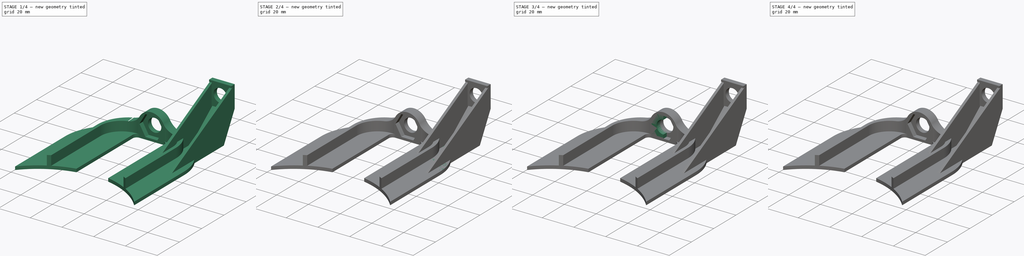
[diagram: build sequence overview — one tinted view per stage of 4, left to right]
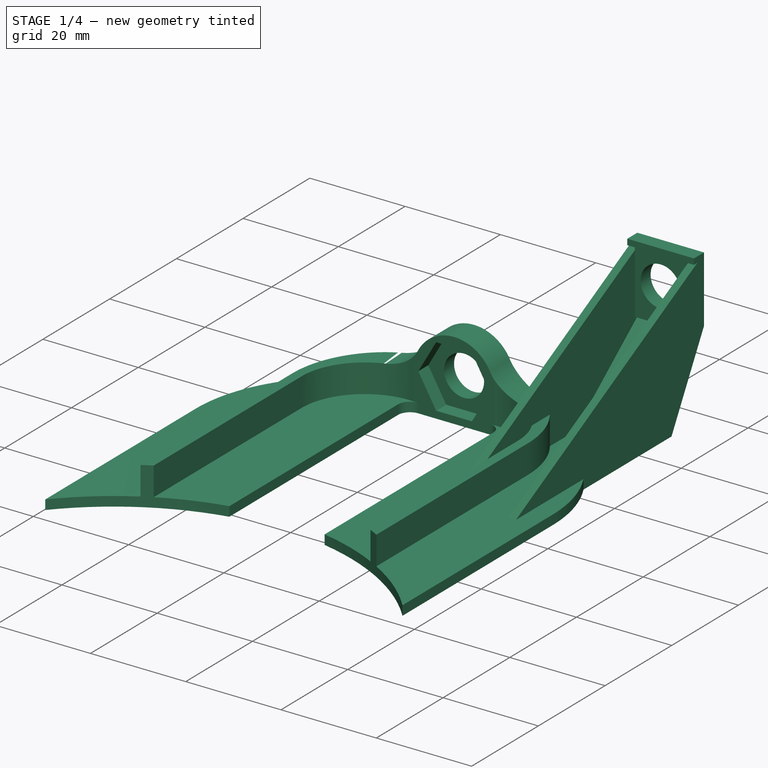
[diagram: stage 1 of 4 — iso view after this stage's code; geometry added in this stage tinted green]
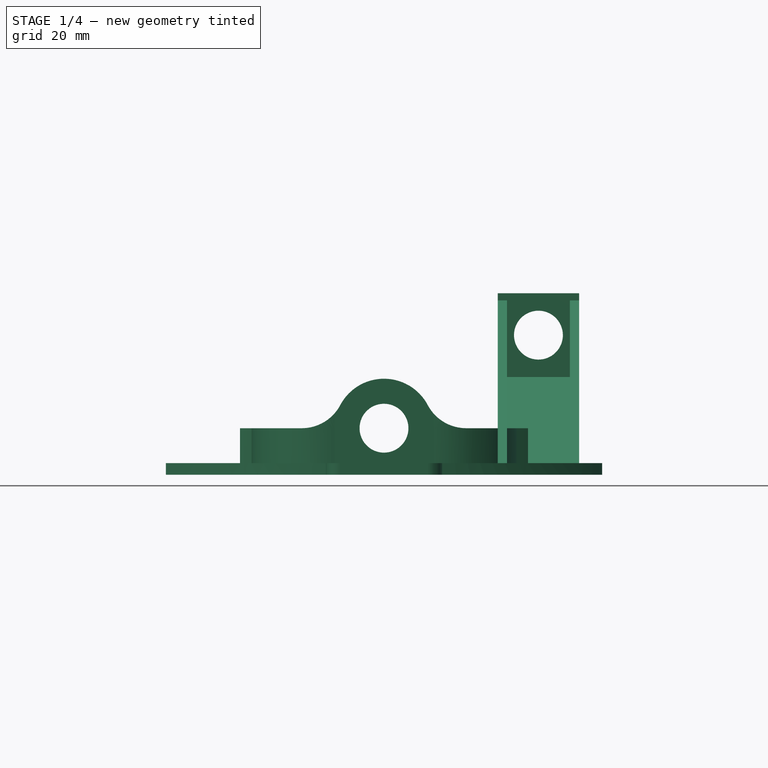
[diagram: stage 1 of 4 — front view after this stage's code; geometry added in this stage tinted green]
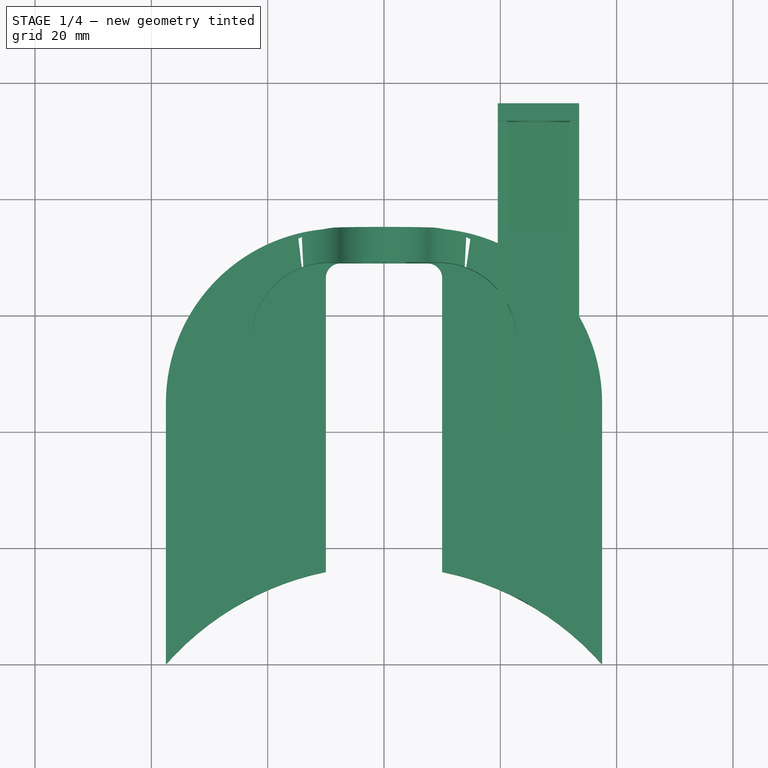
[diagram: stage 1 of 4 — top view after this stage's code; geometry added in this stage tinted green]
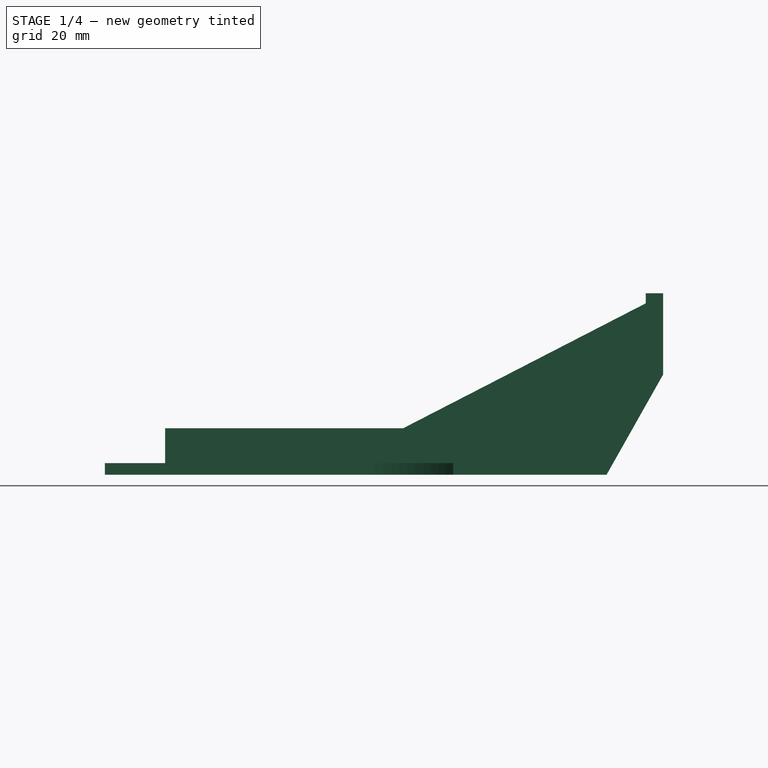
[diagram: stage 1 of 4 — right view after this stage's code; geometry added in this stage tinted green]
FCSTD DOCUMENT  (FreeCAD 0.18.4R)
Label: 7
License: All rights reserved
LicenseURL: http://en.wikipedia.org/wiki/All_rights_reserved
objects: Sketcher::SketchObject×15, PartDesign::Pad×7, PartDesign::Pocket×4, PartDesign::Mirrored×4, PartDesign::Line×1, PartDesign::Plane×1, PartDesign::SubtractivePipe×1, PartDesign::Body×1
note: 46 computed .brp shape members not serialized (recipe doc carries the construction recipe); baked Part::Feature solids carry a one-line shape summary decoded from their .brp

FEATURE [PartDesign::Pad] Pad004  label="Unnamed"
  Length = 100
  Length2 = 100
  Type = 0
FEATURE [PartDesign::Mirrored] Mirrored001  label="Unnamed"
FEATURE [PartDesign::Pad] Pad005  label="Unnamed"
  Length = 100
  Length2 = 100
  Type = 0
FEATURE [Sketcher::SketchObject] Sketch009  label="Unnamed"
FEATURE [PartDesign::Pad] Pad006  label="Unnamed"
  Length = 100
  Length2 = 100
  Type = 0
FEATURE [Sketcher::SketchObject] Sketch008  label="Sketch011"
  ExternalGeometry = -> [Pocket001]
  MapMode = 5
  Placement = pos=(0,0,8) rot=(0,0,1;0rad)
  Support = -> [Pad006]
  constraints (11):
    c: Coincident(g1,g0)
    c: Equal(g0,g1)
    c: Coincident(g3,g2)
    c: Horizontal(g3)
    c: Coincident(g4,g3)
    c: Coincident(g4,g0)
    c: Coincident(g5,g4)
    c: Coincident(g5,g2)
    c: Vertical(g5)
    c: Coincident(g2,g-5)
    c: Coincident(g2,g-5)
FEATURE [Sketcher::SketchObject] Sketch010  label="Unnamed"
FEATURE [Sketcher::SketchObject] Sketch011  label="Unnamed"
FEATURE [PartDesign::Pocket] Pocket002
  BaseFeature = -> Pad006
  Length = 13
  Length2 = 100
  Profile = -> Sketch011
  Reversed = true
  Type = 0
FEATURE [PartDesign::Mirrored] Mirrored002
  BaseFeature = -> Pocket002
  MirrorPlane = -> Sketch009 [V_Axis]
  Originals = -> [Pad006,Pocket002]
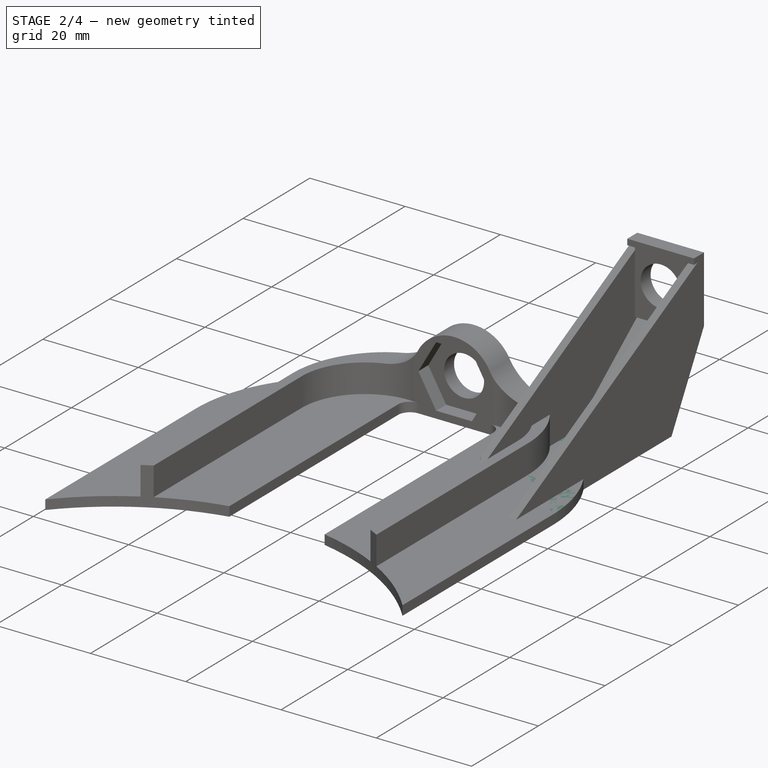
[diagram: stage 2 of 4 — iso view after this stage's code; geometry added in this stage tinted green]
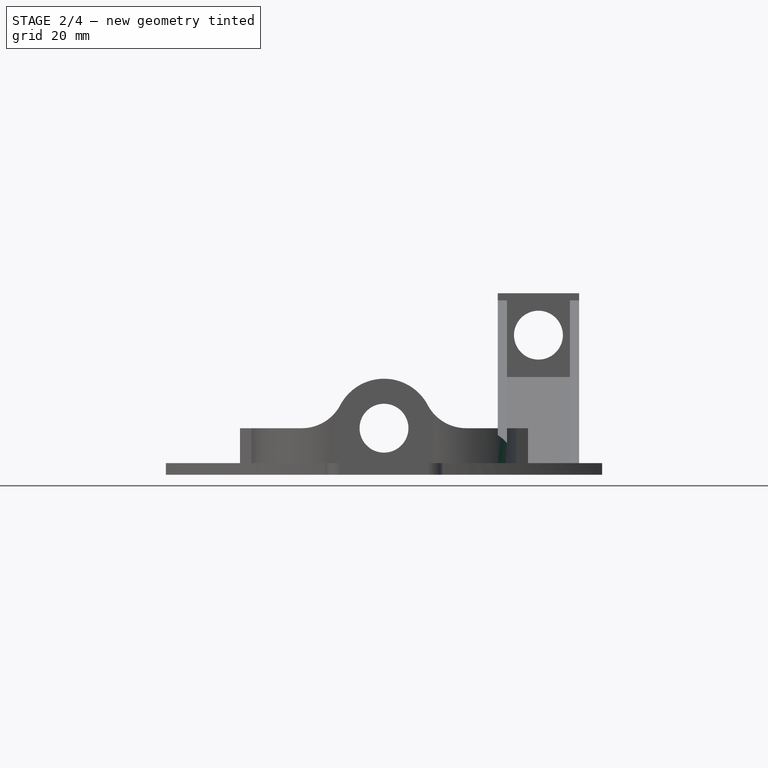
[diagram: stage 2 of 4 — front view after this stage's code; geometry added in this stage tinted green]
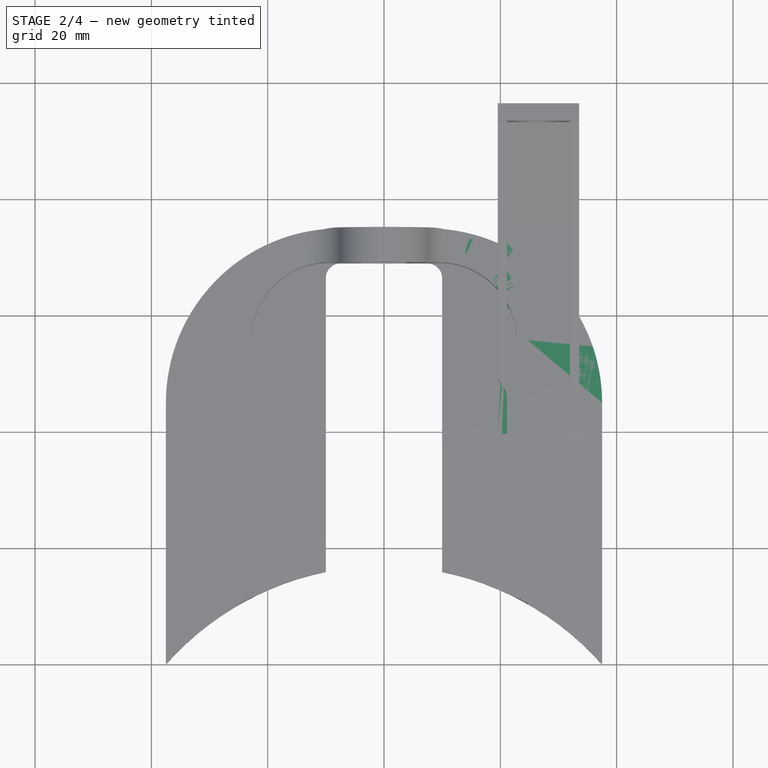
[diagram: stage 2 of 4 — top view after this stage's code; geometry added in this stage tinted green]
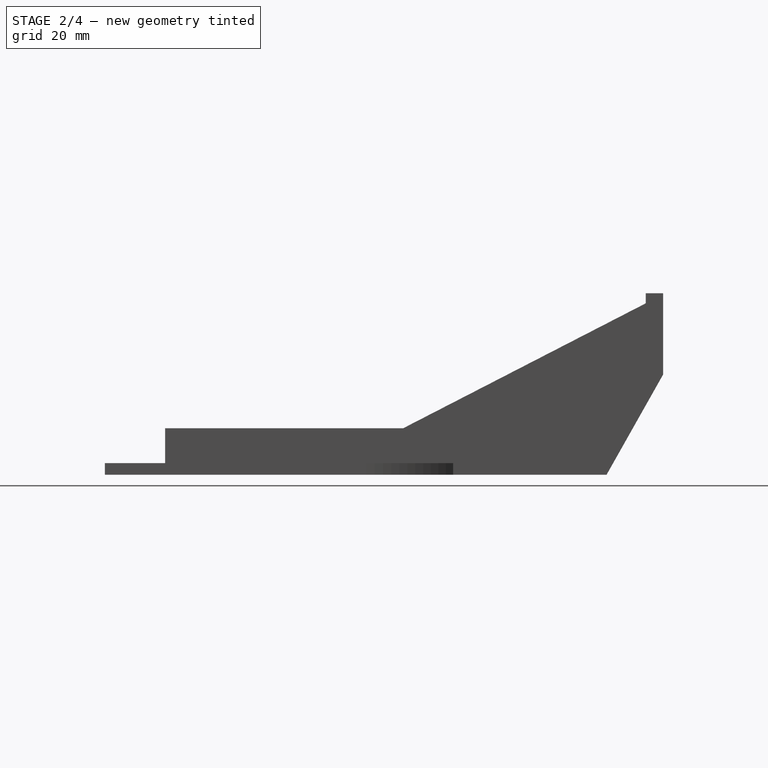
[diagram: stage 2 of 4 — right view after this stage's code; geometry added in this stage tinted green]
FEATURE [Sketcher::SketchObject] Sketch005
  ExternalGeometry = -> [Mirrored]
  MapMode = 5
  Placement = pos=(0,75,0) rot=(0,0.707107,0.707107;3.14159rad)
  Support = -> [Mirrored]
  constraints (9):
    c: Diameter(g0) = 8.4
    c: Vertical(g1)
    c: PointOnObject(g2,g0)
    c: Vertical(g2)
    c: PointOnObject(g1,g0)
    c: Coincident(g1,g0)
    c: Coincident(g2,g1)
    c: Distance(g-3,g1) = 31
    c: DistanceY(g-3,g1) = 16
FEATURE [PartDesign::Line] DatumLine
  AttacherType = Attacher::AttachEngineLine
  MapMode = 29
  Placement = pos=(26.5518,75,0) rot=(0,1,0;3.14159rad)
  Support = -> [Sketch005]
FEATURE [PartDesign::Plane] DatumPlane
  Length = 96.3965
  MapMode = 4
  Placement = pos=(26.5518,75,0) rot=(0.57735,0.57735,-0.57735;4.18879rad)
  ResizeMode = 0
  Support = -> [DatumLine]
  Width = 49.5965
FEATURE [PartDesign::Pad] Pad003  label="Unnamed"
  Length = 100
  Length2 = 100
  Type = 0
FEATURE [Sketcher::SketchObject] Sketch006  label="Sketch007"
  ExternalGeometry = -> [Sketch005]
  MapMode = 5
  Placement = pos=(0,96,0) rot=(0,0.707107,0.707107;3.14159rad)
  Support = -> [Pad003]
  expr: Constraints[27] = Pad.Length
  constraints (30):
    c: Vertical(g0)
    c: Horizontal(g0,g-3)
    c: Horizontal(g0,g-4)
    c: Distance(g-4,g0) = 20
    c: PointOnObject(g1,g-1)
    c: Vertical(g1)
    c: Coincident(g1,g2)
    c: PointOnObject(g2,g-1)
    c: Coincident(g2,g3)
    c: Coincident(g3,g4)
    c: Vertical(g4)
    c: Coincident(g4,g5)
    c: Horizontal(g5)
    c: Coincident(g5,g6)
    c: Vertical(g6)
    c: Coincident(g6,g7)
    c: PointOnObject(g7,g-2)
    c: Coincident(g7,g8)
    c: Coincident(g8,g1)
    c: Coincident(g9,g5)
    c: Coincident(g9,g0)
    c: Coincident(g10,g4)
    c: Coincident(g10,g0)
    c: Equal(g10,g9)
    c: Distance(g5) = 2
    c: DistanceY(g0,g6) = 3
    c: Horizontal(g8)
    c: Distance(g1) = 2
    c: Distance(g-4,g-1) = 24
    c: DistanceY(g4,g0) = 3
FEATURE [Sketcher::SketchObject] Sketch007  label="Unnamed"
FEATURE [PartDesign::Pocket] Pocket001
  BaseFeature = -> Pad003
  Length = 5
  Length2 = 100
  Profile = -> Sketch007
  Type = 0
FEATURE [Sketcher::SketchObject] Sketch012  label="Sketch013"
  ExternalGeometry = -> [Mirrored002]
  MapMode = 5
  Placement = pos=(0,0,8) rot=(0,0,1;0rad)
  Support = -> [Mirrored002]
  constraints (7):
    c: Coincident(g0,g-3)
    c: Coincident(g0,g-3)
    c: Coincident(g1,g0)
    c: Horizontal(g1)
    c: Coincident(g2,g0)
    c: Coincident(g2,g1)
    c: Angle(g2,g0) = 0.785398
FEATURE [Sketcher::SketchObject] Sketch013  label="Unnamed"
FEATURE [PartDesign::Pocket] Pocket003
  BaseFeature = -> Mirrored002
  Length = 6
  Length2 = 100
  Profile = -> Sketch013
  Type = 4
FEATURE [Sketcher::SketchObject] Sketch014  label="Unnamed"
  ExternalGeometry = -> [Pocket003]
  constraints (3):
    c: Coincident(g0,g-3)
    c: Coincident(g0,g-3)
    c: Tangent(g0,g-3)
FEATURE [PartDesign::SubtractivePipe] SubtractivePipe  label="Unnamed"
  AuxilleryCurvelinear = true
  AuxillerySpineTangent = false
  Binormal = (0,0,0)
  Mode = 0
  SpineTangent = false
  Transformation = 0
  Transition = 0
FEATURE [PartDesign::Mirrored] Mirrored003  label="Unnamed"
FEATURE [PartDesign::Body] Body
  Group = -> [Sketch,Pad,Sketch001,Sketch002,Sketch003,Pad001,Sketch004,Pad002,Pocket,Mirrored,Sketch005,DatumLine,DatumPlane,Sketch006,Pad003,Sketch007,Pocket001,Sketch008,Pad004,Mirrored001,Pad005,Sketch009,Pad006,Sketch010,Sketch011,Pocket002,Mirrored002,Sketch012,Sketch013,Pocket003,Sketch014,SubtractivePipe,Mirrored003]
  Origin = -> Origin
  Tip = -> Mirrored003
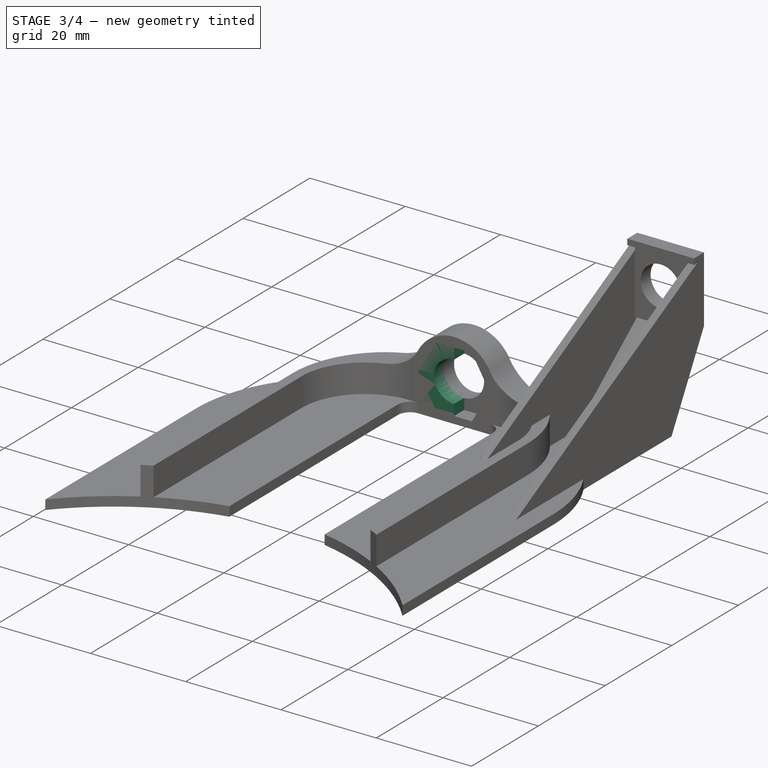
[diagram: stage 3 of 4 — iso view after this stage's code; geometry added in this stage tinted green]
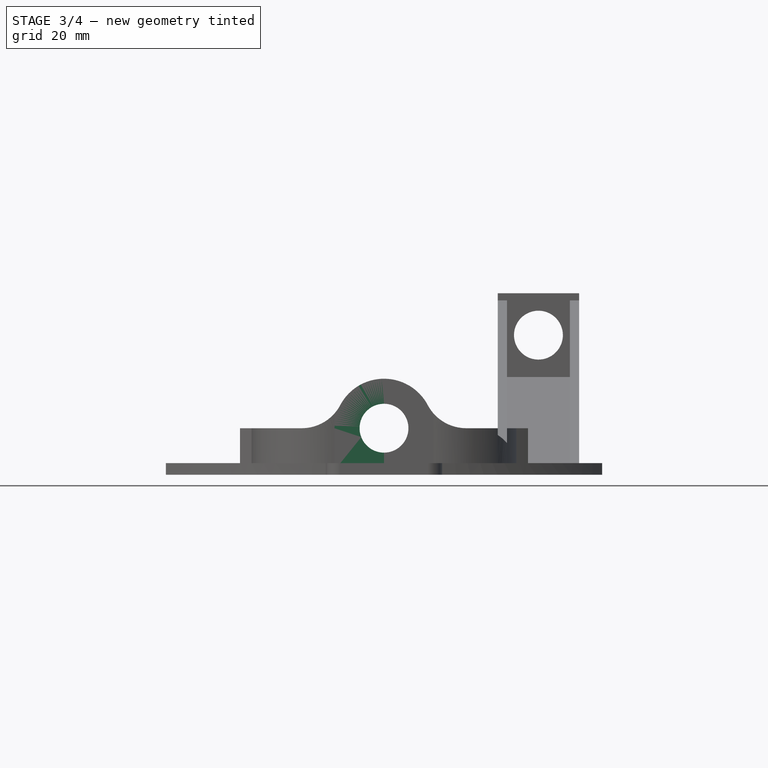
[diagram: stage 3 of 4 — front view after this stage's code; geometry added in this stage tinted green]
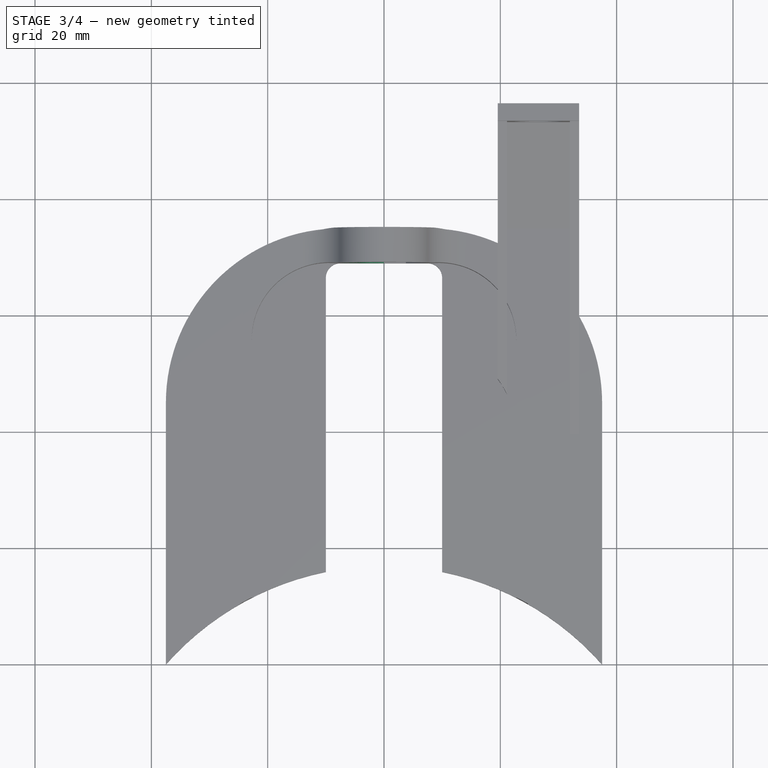
[diagram: stage 3 of 4 — top view after this stage's code; geometry added in this stage tinted green]
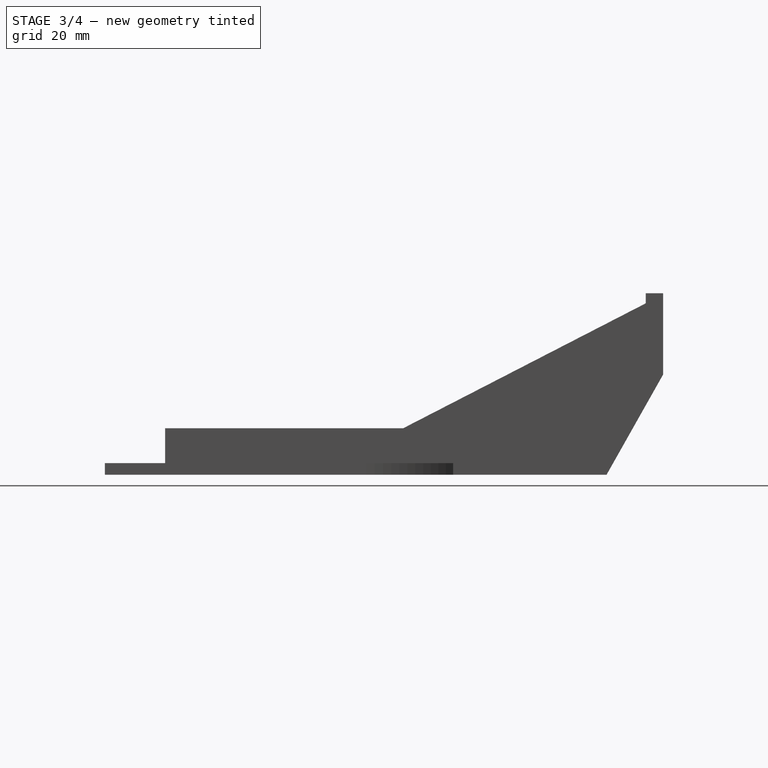
[diagram: stage 3 of 4 — right view after this stage's code; geometry added in this stage tinted green]
FEATURE [Sketcher::SketchObject] Sketch
  MapMode = 5
  Support = -> [XY_Plane]
  constraints (30):
    c: PointOnObject(g0,g-1)
    c: PointOnObject(g0,g-1)
    c: Coincident(g0,g1)
    c: Vertical(g1)
    c: Coincident(g0,g2)
    c: Vertical(g2)
    c: PointOnObject(g3,g-2)
    c: Coincident(g3,g4)
    c: PointOnObject(g4,g-2)
    c: Coincident(g5,g2)
    c: Coincident(g6,g5)
    c: Coincident(g6,g4)
    c: Horizontal(g6)
    c: Horizontal(g3)
    c: Tangent(g5,g6)
    c: Tangent(g5,g2)
    c: Distance(g3,g-1) = 69
    c: Distance(g4) = 6
    c: Distance(g0,g-1) = 10
    c: PointOnObject(g7,g1)
    c: Tangent(g7,g8) = 1.5708
    c: Tangent(g3,g8) = 1.5708
    c: Vertical(g7)
    c: Vertical(g5,g8)
    c: Distance(g-1,g2) = 37.5
    c: PointOnObject(g9,g-2)
    c: Coincident(g9,g2)
    c: Coincident(g9,g7)
    c: Diameter(g9) = 100
    c: Diameter(g8) = 5
FEATURE [PartDesign::Pad] Pad
  Length = 2
  Length2 = 100
  Profile = -> Sketch
  Type = 0
FEATURE [Sketcher::SketchObject] Sketch001
  ExternalGeometry = -> [Pad]
  MapMode = 5
  Placement = pos=(0,75,0) rot=(0,0.707107,0.707107;3.14159rad)
  Support = -> [Pad]
  constraints (34):
    c: PointOnObject(g0,g-2)
    c: PointOnObject(g0,g-2)
    c: PointOnObject(g0,g-2)
    c: Coincident(g1,g0)
    c: PointOnObject(g1,g-2)
    c: Diameter(g0) = 8.4
    c: Coincident(g2,g0)
    c: Coincident(g3,g0)
    c: Coincident(g3,g1)
    c: Vertical(g4)
    c: Coincident(g5,g6)
    c: Coincident(g6,g7)
    c: Coincident(g7,g8)
    c: Coincident(g8,g9)
    c: Coincident(g9,g10)
    c: Coincident(g10,g5)
    c: Equal(g5, g6-g10) x5
    c: PointOnObject(g5,g11)
    c: PointOnObject(g6,g11)
    c: PointOnObject(g7,g11)
    c: PointOnObject(g8,g11)
    c: PointOnObject(g9,g11)
    c: PointOnObject(g10,g11)
    c: Coincident(g11,g0)
    c: Horizontal(g6)
    c: Distance(g9,g5) = 13
    c: Distance(g2,g0) = 6
    c: Horizontal(g12)
    c: Distance(g5,g4) = 1
    c: Coincident(g2,g-3)
    c: Coincident(g12,g2)
    c: Coincident(g12,g4)
    c: Coincident(g1,g4)
    c: Tangent(g1,g4)
FEATURE [Sketcher::SketchObject] Sketch003
  MapMode = 5
  Placement = pos=(0,0,2) rot=(0,0,1;0rad)
FEATURE [PartDesign::Pad] Pad001
  BaseFeature = -> Pad
  Length = 6
  Length2 = 100
  Profile = -> Sketch001
  Reversed = true
  Type = 0
FEATURE [Sketcher::SketchObject] Sketch004
  ExternalGeometry = -> [Pad001]
  MapMode = 5
  Placement = pos=(0,0,2) rot=(0,0,1;0rad)
  constraints (53):
    c: Coincident(g1,g0)
    c: Equal(g0,g1)
    c: Parallel(g1,g0)
    c: Coincident(g2,g0)
    c: Vertical(g2)
    c: Coincident(g4,g3)
    c: Equal(g4,g3)
    c: InternalAlignment(g6-g9 -> g5) x4
    c: InternalAlignment(g11-g14 -> g10) x4
    c: Coincident(g15,g3)
    c: PointOnObject(g15,g3)
    c: Coincident(g16,g15)
    c: PointOnObject(g16,g4)
    c: Equal(g16,g15)
    c: Distance(g16,g15) = 6
    c: Coincident(g17,g0)
    c: Horizontal(g17)
    c: Coincident(g18,g17)
    c: Horizontal(g18)
    c: Distance(g18,g17) = 2
    c: Equal(g18,g17)
    c: Coincident(g5,g17)
    c: Coincident(g5,g15)
    c: Coincident(g10,g18)
    c: Coincident(g10,g16)
    c: PointOnObject(g19,g10)
    c: PointOnObject(g19,g16)
    c: Perpendicular(g10,g16,g19) = 1.5708
    c: PointOnObject(g20,g5)
    c: PointOnObject(g20,g15)
    c: Perpendicular(g5,g15,g20) = 4.71239
    c: PointOnObject(g21,g10)
    c: PointOnObject(g21,g18)
    c: Perpendicular(g10,g18,g21) = 1.5708
    c: PointOnObject(g22,g5)
    c: PointOnObject(g22,g17)
    c: Perpendicular(g5,g17,g22) = 4.71239
    c: Coincident(g23,g5)
    c: Vertical(g23)
    c: Coincident(g24,g10)
    c: Vertical(g24)
    c: Vertical(g11)
    c: Vertical(g6)
    c: Coincident(g25,g23)
    c: Coincident(g25,g24)
    c: PointOnObject(g2,g25)
    c: PointOnObject(g23,g-3)
    c: PointOnObject(g2,g-3)
    c: PointOnObject(g24,g-3)
    c: Coincident(g0,g-4)
    c: Coincident(g1,g-5)
    c: Coincident(g4,g-6)
    c: Coincident(g5,g-6)
FEATURE [PartDesign::Pad] Pad002
  BaseFeature = -> Pad001
  Length = 6
  Length2 = 100
  Profile = -> Sketch004
  Type = 0
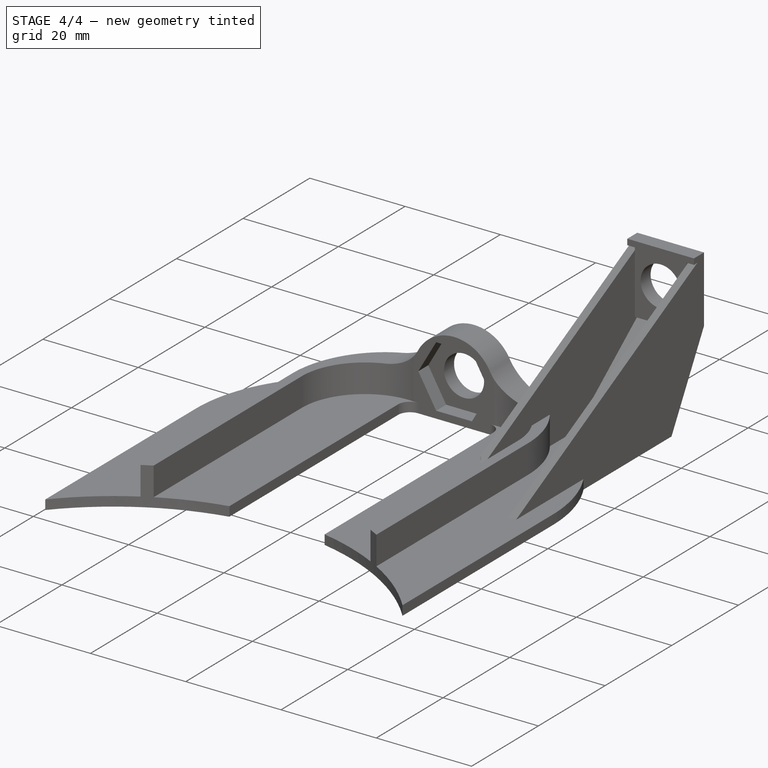
[diagram: stage 4 of 4 — iso view after this stage's code; geometry added in this stage tinted green]
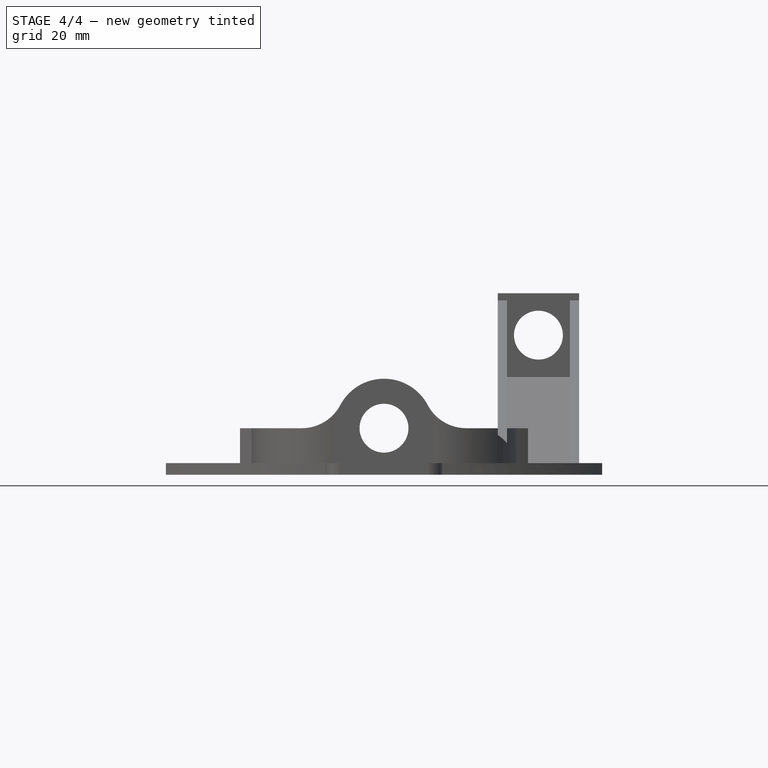
[diagram: stage 4 of 4 — front view after this stage's code; geometry added in this stage tinted green]
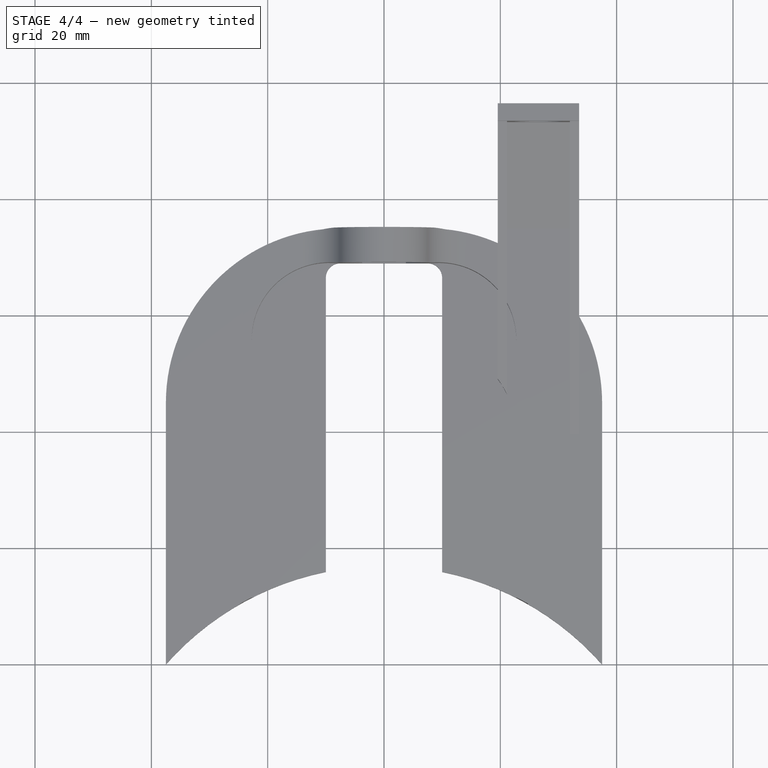
[diagram: stage 4 of 4 — top view after this stage's code; geometry added in this stage tinted green]
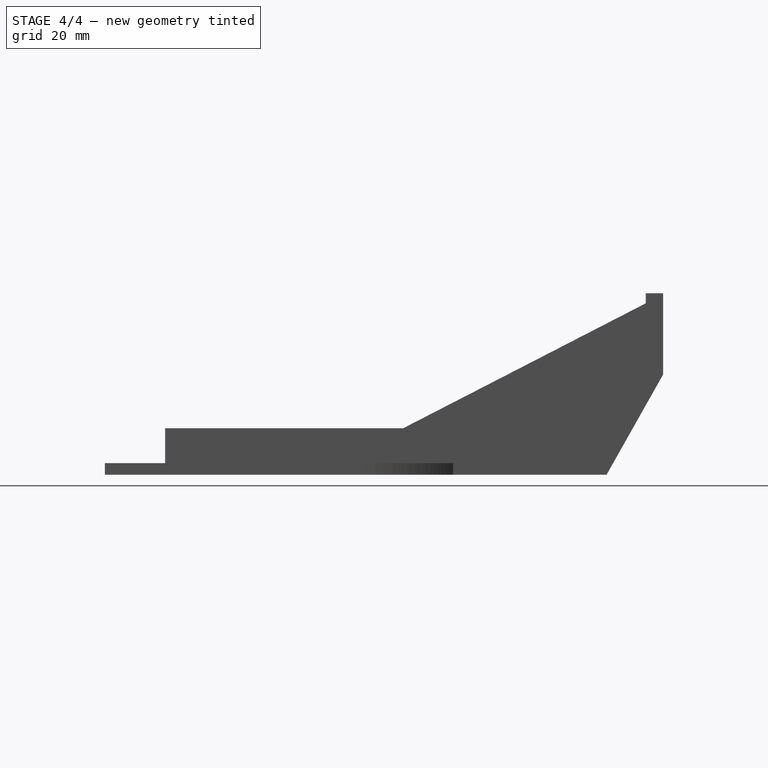
[diagram: stage 4 of 4 — right view after this stage's code; geometry added in this stage tinted green]
FEATURE [Sketcher::SketchObject] Sketch002
  ExternalGeometry = -> [Pad002]
  MapMode = 5
  Placement = pos=(0,69,0) rot=(1,0,0;1.5708rad)
  Support = -> [Pad002]
  constraints (23):
    c: Coincident(g0,g1)
    c: Coincident(g1,g2)
    c: Coincident(g2,g3)
    c: Coincident(g3,g4)
    c: Coincident(g4,g5)
    c: Coincident(g5,g0)
    c: Equal(g0, g1-g5) x5
    c: PointOnObject(g0,g6)
    c: PointOnObject(g1,g6)
    c: PointOnObject(g2,g6)
    c: PointOnObject(g3,g6)
    c: PointOnObject(g4,g6)
    c: PointOnObject(g5,g6)
    c: Distance(g4,g0) = 13
    c: Coincident(g8,g0)
    c: Coincident(g8,g7)
    c: Horizontal(g8)
    c: Coincident(g9,g5)
    c: Coincident(g9,g7)
    c: Horizontal(g9)
    c: Horizontal(g4)
    c: Vertical(g7)
    c: PointOnObject(g7,g-2)
FEATURE [PartDesign::Pocket] Pocket
  BaseFeature = -> Pad002
  Length = 3
  Length2 = 100
  Profile = -> Sketch002
  Type = 0
FEATURE [PartDesign::Mirrored] Mirrored
  BaseFeature = -> Pocket
  MirrorPlane = -> Sketch [V_Axis]
  Originals = -> [Pad,Pad001,Pad002,Pocket]
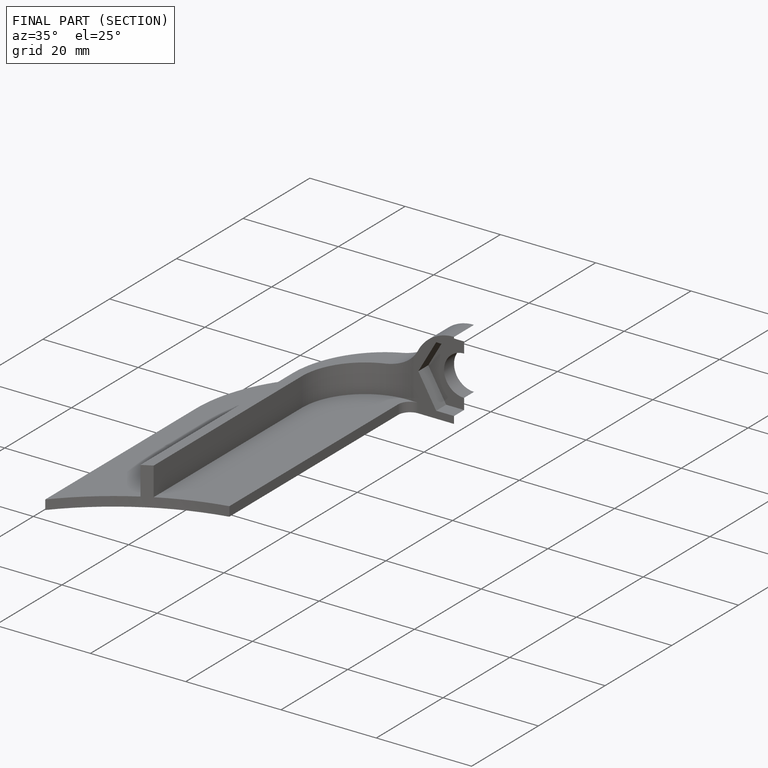
[diagram: finished part — half-section view (interior)]
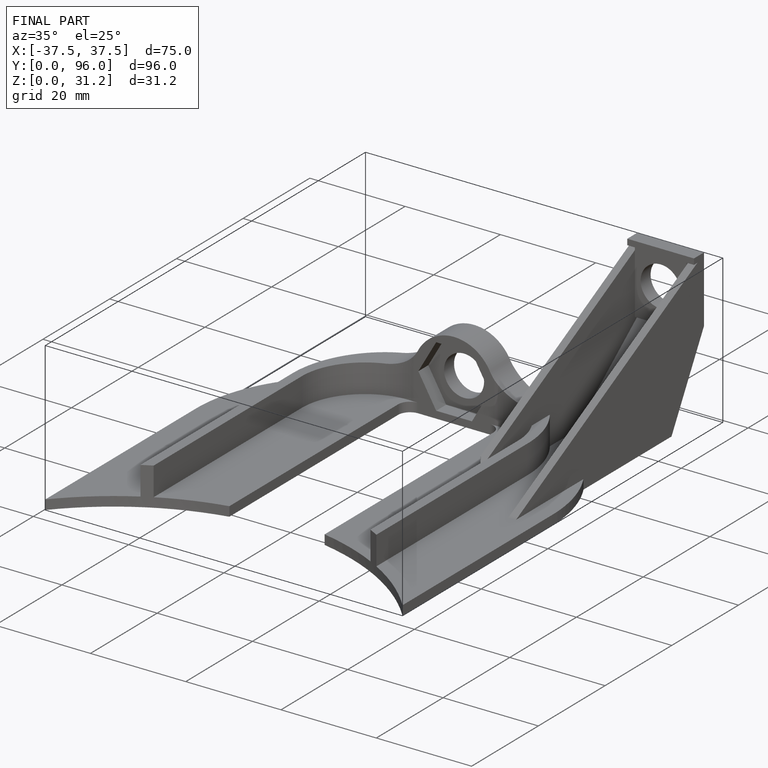
[diagram: finished part — iso view with bounding-box wireframe]
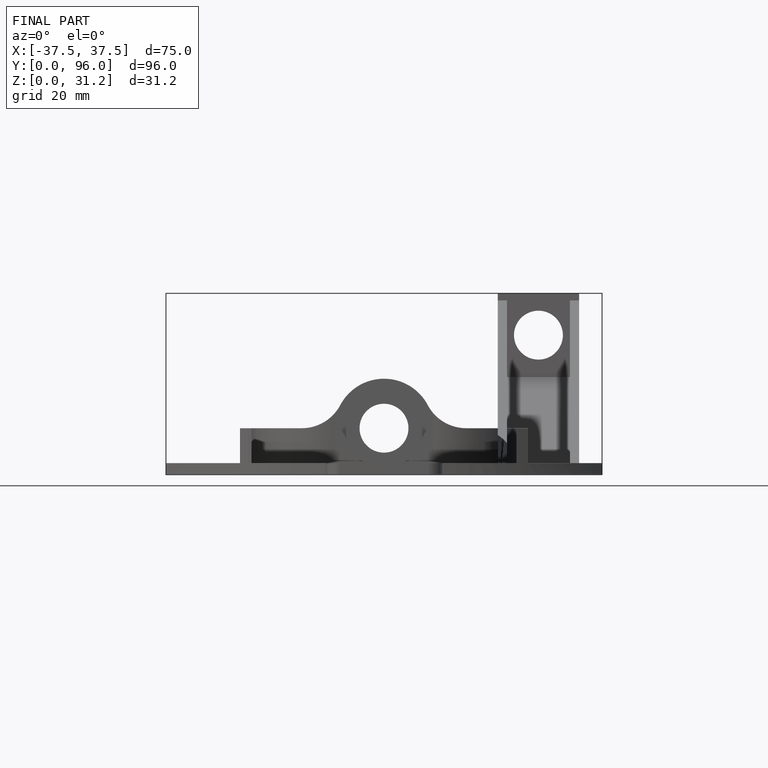
[diagram: finished part — front view with bounding-box wireframe]
